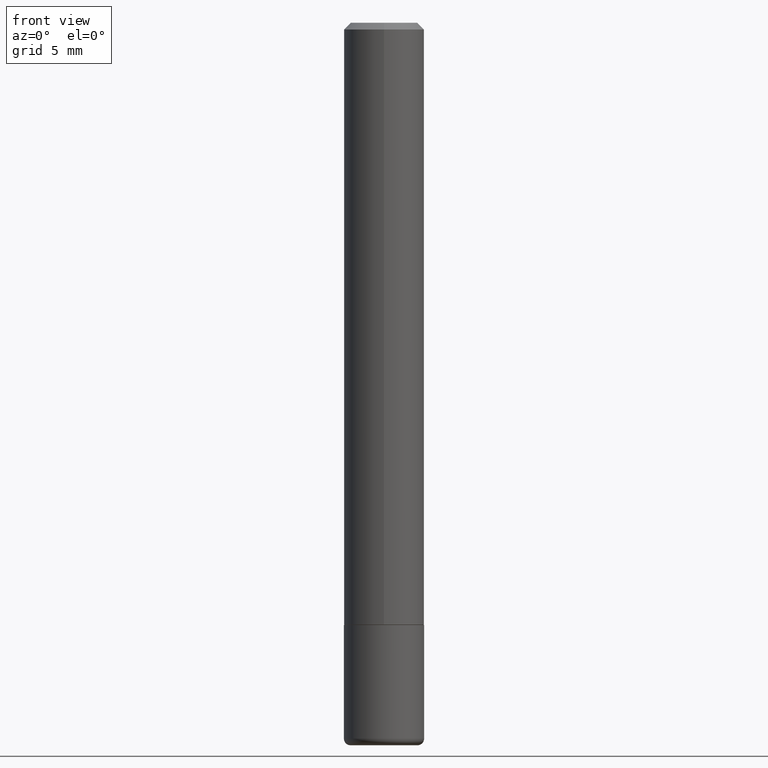
[diagram: clean part render]
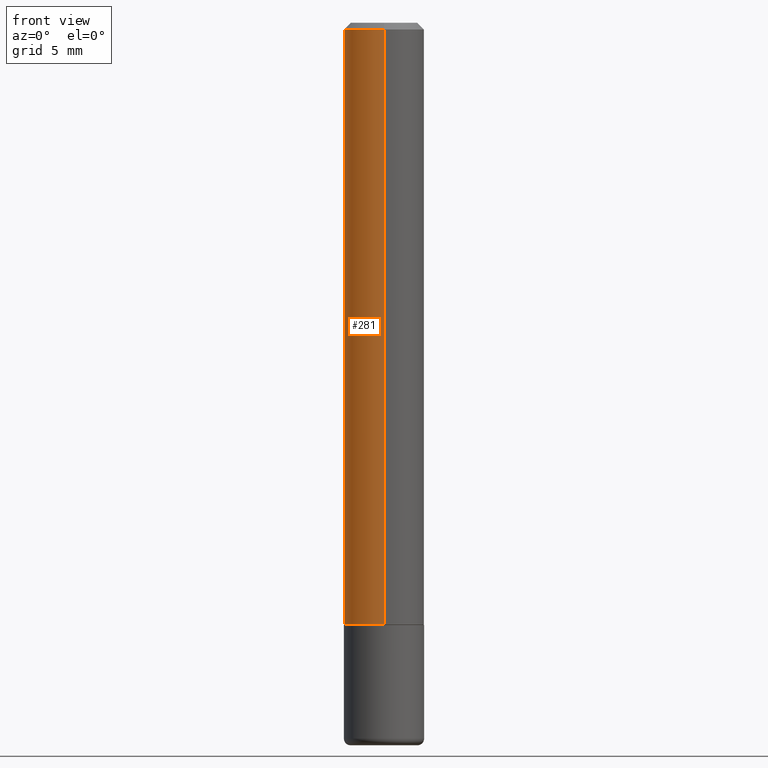
[diagram: same view with one face highlighted and labeled with its STEP entity id]
A machine part, front view. The second image highlights one B-rep face of the part: STEP entity #281.
In plain terms, the highlighted cylindrical surface (partial cylindrical patch) has radius 2.9997 mm, axis along (-0, 0, 1).
Its self-contained STEP definition (entity closure, byte-faithful):
#12 = CARTESIAN_POINT ( 'NONE',  ( -8.246878922347489529E-16, -0.1181000000000001354, 4.133363577972476627E-16 ) ) ;
#20 = EDGE_LOOP ( 'NONE', ( #51, #93, #282, #286 ) ) ;
#29 = EDGE_CURVE ( 'NONE', #219, #251, #54, .T. ) ;
#33 = DIRECTION ( 'NONE',  ( -2.439600919884167677E-29, 3.499884486005479711E-15, 1.000000000000000000 ) ) ;
#45 = AXIS2_PLACEMENT_3D ( 'NONE', #102, #173, #307 ) ;
#51 = ORIENTED_EDGE ( 'NONE', *, *, #62, .F. ) ;
#52 = CYLINDRICAL_SURFACE ( 'NONE', #374, 0.1181000000000001354 ) ;
#54 = CIRCLE ( 'NONE', #373, 0.1181000000000002603 ) ;
#62 = EDGE_CURVE ( 'NONE', #219, #289, #125, .T. ) ;
#68 = CARTESIAN_POINT ( 'NONE',  ( 8.391509709327015671E-16, 0.1180999999999940708, -1.770700000000000385 ) ) ;
#93 = ORIENTED_EDGE ( 'NONE', *, *, #29, .T. ) ;
#102 = CARTESIAN_POINT ( 'NONE',  ( 4.879201839768351154E-31, -6.999768972010982150E-17, -0.02000000000000006287 ) ) ;
#117 = EDGE_CURVE ( 'NONE', #251, #180, #332, .T. ) ;
#125 = LINE ( 'NONE', #259, #412 ) ;
#138 = EDGE_CURVE ( 'NONE', #289, #180, #187, .T. ) ;
#145 = FACE_OUTER_BOUND ( 'NONE', #20, .T. ) ;
#153 = CARTESIAN_POINT ( 'NONE',  ( -8.246878922347066502E-16, -0.1181000000000064498, -1.770699999999999275 ) ) ;
#173 = DIRECTION ( 'NONE',  ( -2.439600919884167677E-29, 3.499884486005480105E-15, 1.000000000000000000 ) ) ;
#180 = VERTEX_POINT ( 'NONE', #299 ) ;
#185 = DIRECTION ( 'NONE',  ( -6.982962677686265922E-15, -1.000000000000000000, 3.499884486005480105E-15 ) ) ;
#186 = VECTOR ( 'NONE', #33, 39.37007874015748143 ) ;
#187 = CIRCLE ( 'NONE', #45, 0.1181000000000000383 ) ;
#190 = DIRECTION ( 'NONE',  ( -2.439600919884167677E-29, 3.499884486005479711E-15, 1.000000000000000000 ) ) ;
#219 = VERTEX_POINT ( 'NONE', #68 ) ;
#251 = VERTEX_POINT ( 'NONE', #153 ) ;
#259 = CARTESIAN_POINT ( 'NONE',  ( 8.391509709326791832E-16, 0.1181000000000001354, -4.133363577972476627E-16 ) ) ;
#263 = CARTESIAN_POINT ( 'NONE',  ( 4.319801348838895130E-29, -6.197245459369903172E-15, -1.770699999999999719 ) ) ;
#280 = CARTESIAN_POINT ( 'NONE',  ( 8.246878922347486570E-16, 0.1180999999999999689, -0.02000000000000047920 ) ) ;
#281 = ADVANCED_FACE ( 'NONE', ( #145 ), #52, .T. ) ;
#282 = ORIENTED_EDGE ( 'NONE', *, *, #117, .T. ) ;
#284 = DIRECTION ( 'NONE',  ( -2.439600919884167677E-29, 3.499884486005480105E-15, 1.000000000000000000 ) ) ;
#286 = ORIENTED_EDGE ( 'NONE', *, *, #138, .F. ) ;
#289 = VERTEX_POINT ( 'NONE', #280 ) ;
#299 = CARTESIAN_POINT ( 'NONE',  ( -8.102248135368175393E-16, -0.1181000000000001077, -0.01999999999999965000 ) ) ;
#307 = DIRECTION ( 'NONE',  ( -6.982962677686265922E-15, -1.000000000000000000, 3.505890868245044514E-15 ) ) ;
#332 = LINE ( 'NONE', #12, #186 ) ;
#373 = AXIS2_PLACEMENT_3D ( 'NONE', #263, #415, #416 ) ;
#374 = AXIS2_PLACEMENT_3D ( 'NONE', #402, #284, #185 ) ;
#402 = CARTESIAN_POINT ( 'NONE',  ( 0.000000000000000000, 0.000000000000000000, 0.000000000000000000 ) ) ;
#412 = VECTOR ( 'NONE', #190, 39.37007874015748143 ) ;
#415 = DIRECTION ( 'NONE',  ( -2.439600919884167677E-29, 3.499884486005480105E-15, 1.000000000000000000 ) ) ;
#416 = DIRECTION ( 'NONE',  ( -6.982962677686265133E-15, -1.000000000000000000, 4.626330217890359081E-15 ) ) ;